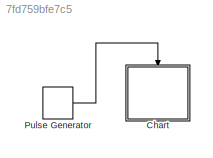
MODEL slx_7fd759bfe7c5
KIND model
CONFIG AbsTol = auto
CONFIG EnableMultiTasking = off
CONFIG FixedStep = auto
CONFIG MaxStep = auto
CONFIG MinStep = auto
CONFIG RelTol = 1e-3
CONFIG SampleTimeConstraint = Unconstrained
CONFIG Solver = VariableStepAuto
CONFIG SolverName = VariableStepAuto
CONFIG StartTime = 0.0
CONFIG StopTime = 10.0
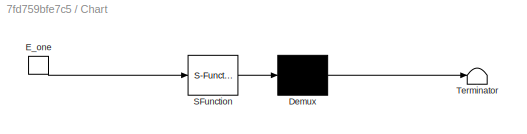
BLOCK [SubSystem] Chart
  ErrorFcn = Stateflow.Translate.translate
  PermitHierarchicalResolution = ExplicitOnly
  Ports = [0, 0, 0, 1]
  RequestExecContextInheritance = off
  SFBlockType = Chart
  TreatAsAtomicUnit = on
BLOCK [Demux] Chart/ Demux 
  DisplayOption = bar
  Outputs = 1
  Ports = [1, 1]
BLOCK [S-Function] Chart/ SFunction 
  EnableBusSupport = on
  FunctionName = sf_sfun
  PortCounts = [1 1]
  Ports = [1, 1]
  SFcnIsStateOwnerBlock = off
  SFunctionDeploymentMode = off
  Tag = Stateflow S-Function Input_Event_2018a 3
BLOCK [Terminator] Chart/ Terminator 
BLOCK [TriggerPort] Chart/E_one
  Ports = [0, 1]
  ShowOutputPort = on
  StatesWhenEnabling = held
  TriggerType = either
  VariantControl = (inherit)
BLOCK [DiscretePulseGenerator] Pulse Generator
  Period = 10
  Ports = [0, 1]
  PulseType = Time based
  PulseWidth = 50
LINE Pulse Generator:1 -> Chart:trigger
CHART Chart states=3 transitions=3
  STATE_LABEL 'On2\nen:fprintf("Entry_On");\ndu:fprintf("During_On");\nex:fprintf("Exit_On");'
  STATE_LABEL 'On\nen:fprintf("Entry_On");\ndu:fprintf("During_On");\nex:fprintf("Exit_On");'
  STATE_LABEL 'Off\nen:fprintf("Entry_Off");\ndu:fprintf("During_Off");\nex:fprintf("Exit_Off");'
